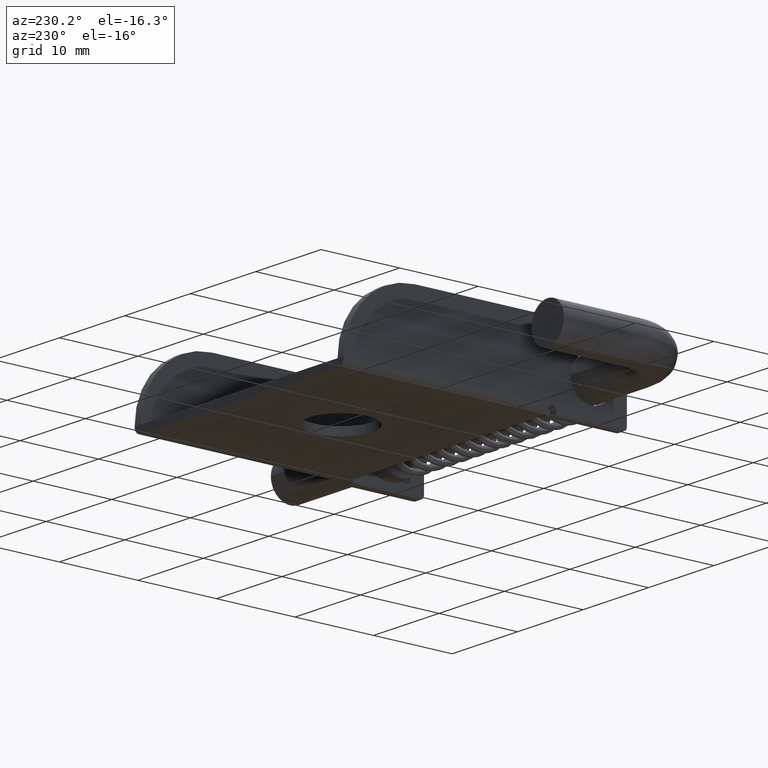
[diagram: clean part render]
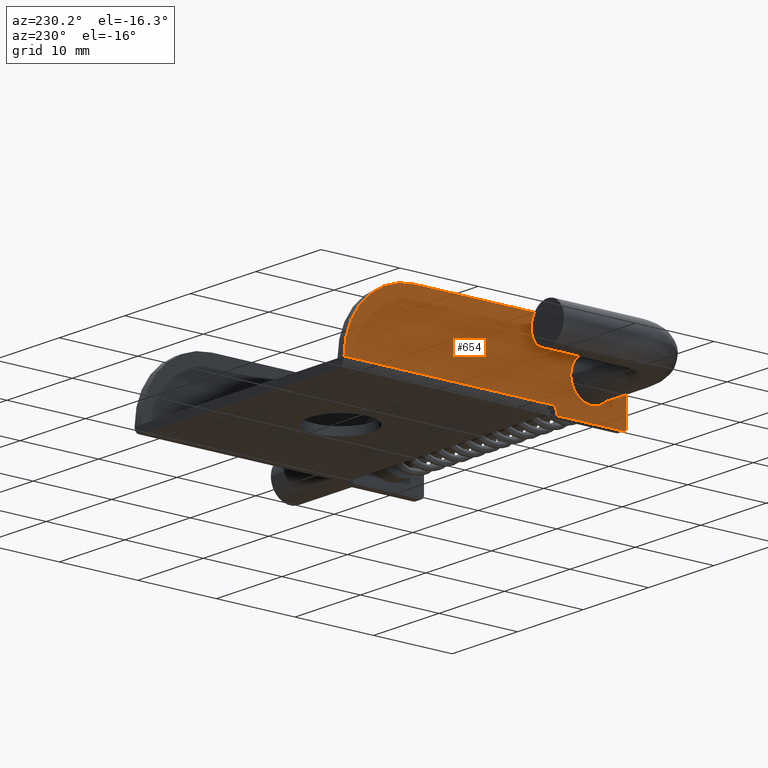
[diagram: same view with one face highlighted and labeled with its STEP entity id]
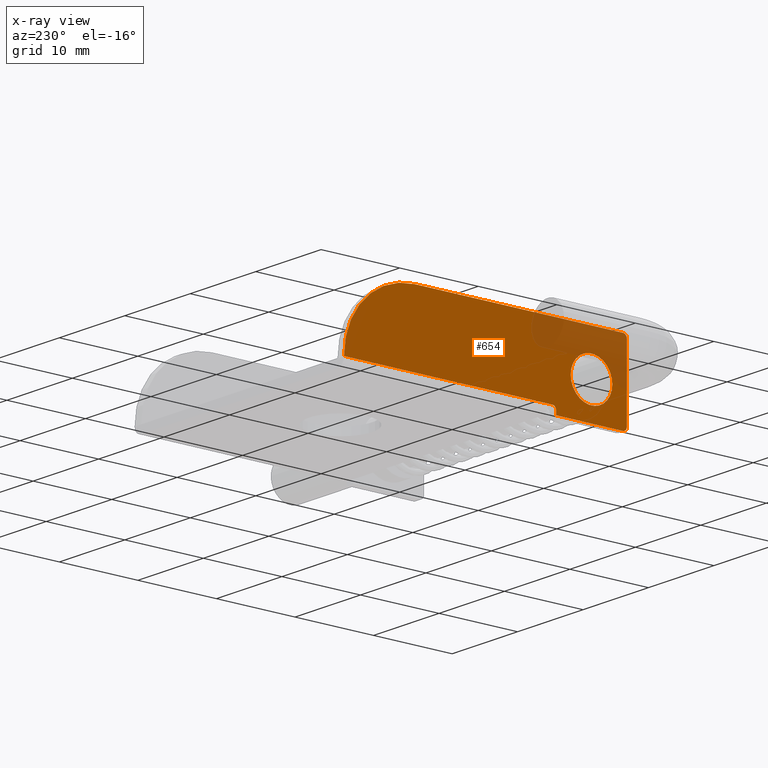
[diagram: x-ray of the same camera — body ghosted, the highlighted face saturated]
A machine part, auxiliary view. The second image highlights one B-rep face of the part: STEP entity #654.
The next image is the same camera in x-ray: the body ghosted, the highlighted face saturated — about 15% of this face is hidden behind the body in this view.
In plain terms, the highlighted planar face has unit normal (-1, 0, 0).
Its self-contained STEP definition (entity closure, byte-faithful):
#44=LINE('',#1050,#90);
#45=LINE('',#1054,#91);
#46=LINE('',#1058,#92);
#47=LINE('',#1062,#93);
#48=LINE('',#1063,#94);
#90=VECTOR('',#850,9.);
#91=VECTOR('',#853,26.5);
#92=VECTOR('',#856,26.5);
#93=VECTOR('',#859,0.5);
#94=VECTOR('',#860,8.5);
#163=FACE_BOUND('',#236,.T.);
#185=FACE_OUTER_BOUND('',#235,.T.);
#235=EDGE_LOOP('',(#491,#492,#493,#494,#495,#496,#497,#498,#499));
#236=EDGE_LOOP('',(#500));
#285=CIRCLE('',#717,0.5);
#287=CIRCLE('',#720,0.5);
#288=CIRCLE('',#721,9.);
#289=CIRCLE('',#722,0.499999999999998);
#290=CIRCLE('',#723,2.65);
#326=VERTEX_POINT('',#1040);
#327=VERTEX_POINT('',#1041);
#330=VERTEX_POINT('',#1049);
#331=VERTEX_POINT('',#1051);
#332=VERTEX_POINT('',#1053);
#333=VERTEX_POINT('',#1055);
#334=VERTEX_POINT('',#1057);
#335=VERTEX_POINT('',#1059);
#336=VERTEX_POINT('',#1061);
#337=VERTEX_POINT('',#1064);
#389=EDGE_CURVE('',#326,#327,#285,.T.);
#393=EDGE_CURVE('',#326,#330,#44,.T.);
#394=EDGE_CURVE('',#331,#330,#287,.T.);
#395=EDGE_CURVE('',#332,#331,#45,.T.);
#396=EDGE_CURVE('',#333,#332,#288,.T.);
#397=EDGE_CURVE('',#334,#333,#46,.T.);
#398=EDGE_CURVE('',#334,#335,#289,.T.);
#399=EDGE_CURVE('',#335,#336,#47,.T.);
#400=EDGE_CURVE('',#327,#336,#48,.T.);
#401=EDGE_CURVE('',#337,#337,#290,.T.);
#491=ORIENTED_EDGE('',*,*,#389,.F.);
#492=ORIENTED_EDGE('',*,*,#393,.T.);
#493=ORIENTED_EDGE('',*,*,#394,.F.);
#494=ORIENTED_EDGE('',*,*,#395,.F.);
#495=ORIENTED_EDGE('',*,*,#396,.F.);
#496=ORIENTED_EDGE('',*,*,#397,.F.);
#497=ORIENTED_EDGE('',*,*,#398,.T.);
#498=ORIENTED_EDGE('',*,*,#399,.T.);
#499=ORIENTED_EDGE('',*,*,#400,.F.);
#500=ORIENTED_EDGE('',*,*,#401,.T.);
#623=PLANE('',#719);
#654=ADVANCED_FACE('',(#185,#163),#623,.T.);
#717=AXIS2_PLACEMENT_3D('',#1042,#842,#843);
#719=AXIS2_PLACEMENT_3D('',#1048,#848,#849);
#720=AXIS2_PLACEMENT_3D('',#1052,#851,#852);
#721=AXIS2_PLACEMENT_3D('',#1056,#854,#855);
#722=AXIS2_PLACEMENT_3D('',#1060,#857,#858);
#723=AXIS2_PLACEMENT_3D('',#1065,#861,#862);
#842=DIRECTION('center_axis',(1.,0.,0.));
#843=DIRECTION('ref_axis',(0.,-0.707106781186546,-0.707106781186549));
#848=DIRECTION('center_axis',(-1.,0.,0.));
#849=DIRECTION('ref_axis',(0.,-1.,0.));
#850=DIRECTION('',(0.,0.,1.));
#851=DIRECTION('center_axis',(1.,0.,0.));
#852=DIRECTION('ref_axis',(0.,-0.707106781186546,0.707106781186549));
#853=DIRECTION('',(0.,-1.,0.));
#854=DIRECTION('center_axis',(1.,0.,0.));
#855=DIRECTION('ref_axis',(0.,0.707106781186547,0.707106781186548));
#856=DIRECTION('',(0.,1.,0.));
#857=DIRECTION('center_axis',(1.,0.,0.));
#858=DIRECTION('ref_axis',(0.,-1.,0.));
#859=DIRECTION('',(0.,0.,-1.));
#860=DIRECTION('',(0.,1.,0.));
#861=DIRECTION('center_axis',(1.,0.,0.));
#862=DIRECTION('ref_axis',(0.,-1.,0.));
#1040=CARTESIAN_POINT('',(-16.,-36.,0.5));
#1041=CARTESIAN_POINT('',(-16.,-35.5,0.));
#1042=CARTESIAN_POINT('Origin',(-16.,-35.5,0.5));
#1048=CARTESIAN_POINT('Origin',(-16.,0.,0.));
#1049=CARTESIAN_POINT('',(-16.,-36.,9.5));
#1050=CARTESIAN_POINT('',(-16.,-36.,0.));
#1051=CARTESIAN_POINT('',(-16.,-35.5,10.));
#1052=CARTESIAN_POINT('Origin',(-16.,-35.5,9.5));
#1053=CARTESIAN_POINT('',(-16.,-9.,10.));
#1054=CARTESIAN_POINT('',(-16.,-36.,10.));
#1055=CARTESIAN_POINT('',(-16.,0.,1.));
#1056=CARTESIAN_POINT('Origin',(-16.,-9.,1.));
#1057=CARTESIAN_POINT('',(-16.,-26.5,1.));
#1058=CARTESIAN_POINT('',(-16.,-6.5,1.));
#1059=CARTESIAN_POINT('',(-16.,-27.,0.5));
#1060=CARTESIAN_POINT('Origin',(-16.,-26.5,0.5));
#1061=CARTESIAN_POINT('',(-16.,-27.,0.));
#1062=CARTESIAN_POINT('',(-16.,-27.,0.25));
#1063=CARTESIAN_POINT('',(-16.,-36.,0.));
#1064=CARTESIAN_POINT('',(-16.,-28.85,4.5));
#1065=CARTESIAN_POINT('Origin',(-16.,-31.5,4.5));